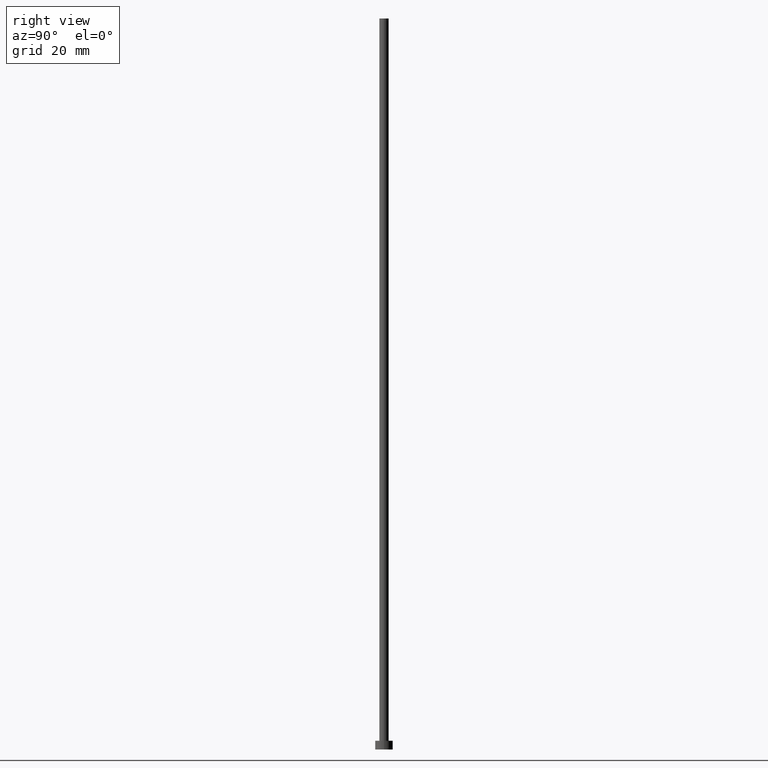
[diagram: clean part render]
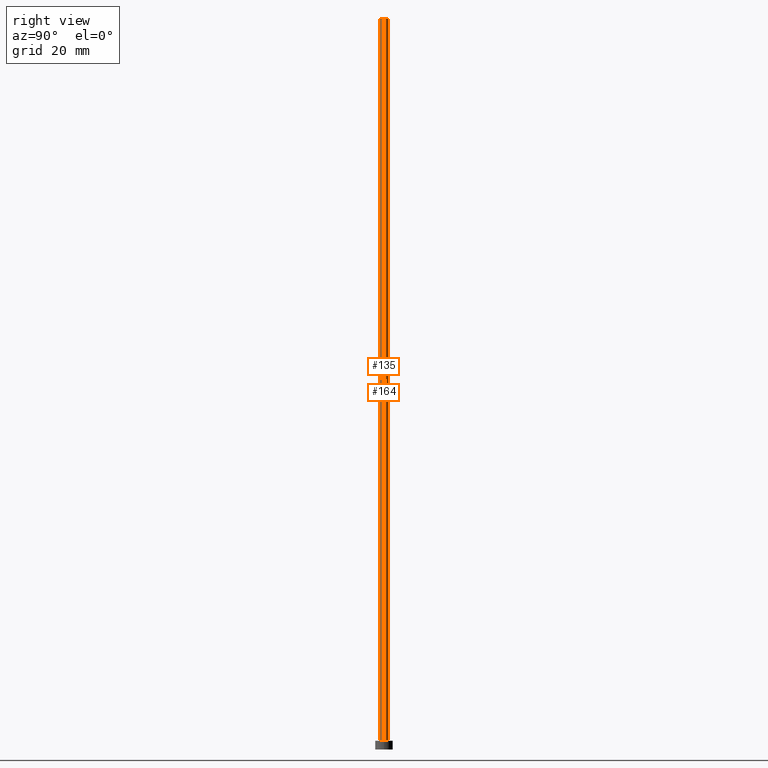
[diagram: same view with one multi-face feature highlighted, each face labeled with its STEP entity id]
A machine part, right view. The highlighted faces form ONE feature: a constant-radius fillet chain: 2 tangent blend faces with common blend radius 1.6 mm. The faces share edges in the B-rep.
Their STEP definitions:
[1] entity #164 (Cylinder):
#1 = DIRECTION ( 'NONE',  ( 1.000000000000000000, 0.000000000000000000, 0.000000000000000000 ) ) ;
#13 = EDGE_CURVE ( 'NONE', #122, #67, #26, .T. ) ;
#15 = CARTESIAN_POINT ( 'NONE',  ( -1.600000000000000089, 0.000000000000000000, 3.000000000000000000 ) ) ;
#24 = AXIS2_PLACEMENT_3D ( 'NONE', #127, #55, #1 ) ;
#26 = LINE ( 'NONE', #87, #102 ) ;
#50 = AXIS2_PLACEMENT_3D ( 'NONE', #71, #217, #53 ) ;
#53 = DIRECTION ( 'NONE',  ( 1.000000000000000000, 0.000000000000000000, 0.000000000000000000 ) ) ;
#55 = DIRECTION ( 'NONE',  ( 0.000000000000000000, 0.000000000000000000, 1.000000000000000000 ) ) ;
#63 = EDGE_LOOP ( 'NONE', ( #103, #190, #166, #229 ) ) ;
#67 = VERTEX_POINT ( 'NONE', #15 ) ;
#71 = CARTESIAN_POINT ( 'NONE',  ( 0.000000000000000000, 0.000000000000000000, 250.0000000000000000 ) ) ;
#74 = DIRECTION ( 'NONE',  ( -0.000000000000000000, -0.000000000000000000, -1.000000000000000000 ) ) ;
#87 = CARTESIAN_POINT ( 'NONE',  ( -1.600000000000000089, 0.000000000000000000, 250.0000000000000000 ) ) ;
#95 = EDGE_CURVE ( 'NONE', #193, #122, #115, .T. ) ;
#96 = CARTESIAN_POINT ( 'NONE',  ( 1.600000000000000089, 1.959434878635765230E-16, 250.0000000000000000 ) ) ;
#102 = VECTOR ( 'NONE', #148, 1000.000000000000000 ) ;
#103 = ORIENTED_EDGE ( 'NONE', *, *, #95, .F. ) ;
#113 = AXIS2_PLACEMENT_3D ( 'NONE', #219, #156, #252 ) ;
#115 = CIRCLE ( 'NONE', #50, 1.600000000000000089 ) ;
#122 = VERTEX_POINT ( 'NONE', #251 ) ;
#127 = CARTESIAN_POINT ( 'NONE',  ( 0.000000000000000000, 0.000000000000000000, 3.000000000000000000 ) ) ;
#134 = CYLINDRICAL_SURFACE ( 'NONE', #113, 1.600000000000000089 ) ;
#138 = EDGE_CURVE ( 'NONE', #248, #67, #240, .T. ) ;
#148 = DIRECTION ( 'NONE',  ( -0.000000000000000000, -0.000000000000000000, -1.000000000000000000 ) ) ;
#152 = LINE ( 'NONE', #96, #168 ) ;
#156 = DIRECTION ( 'NONE',  ( -0.000000000000000000, -0.000000000000000000, -1.000000000000000000 ) ) ;
#164 = ADVANCED_FACE ( 'NONE', ( #196 ), #134, .T. ) ;
#166 = ORIENTED_EDGE ( 'NONE', *, *, #138, .T. ) ;
#168 = VECTOR ( 'NONE', #74, 1000.000000000000000 ) ;
#178 = CARTESIAN_POINT ( 'NONE',  ( 1.600000000000000089, 1.959434878635765230E-16, 250.0000000000000000 ) ) ;
#190 = ORIENTED_EDGE ( 'NONE', *, *, #227, .T. ) ;
#193 = VERTEX_POINT ( 'NONE', #178 ) ;
#196 = FACE_OUTER_BOUND ( 'NONE', #63, .T. ) ;
#217 = DIRECTION ( 'NONE',  ( 0.000000000000000000, 0.000000000000000000, 1.000000000000000000 ) ) ;
#219 = CARTESIAN_POINT ( 'NONE',  ( 0.000000000000000000, 0.000000000000000000, 250.0000000000000000 ) ) ;
#227 = EDGE_CURVE ( 'NONE', #193, #248, #152, .T. ) ;
#229 = ORIENTED_EDGE ( 'NONE', *, *, #13, .F. ) ;
#238 = CARTESIAN_POINT ( 'NONE',  ( 1.600000000000000089, 1.959434878635765230E-16, 3.000000000000000000 ) ) ;
#240 = CIRCLE ( 'NONE', #24, 1.600000000000000089 ) ;
#248 = VERTEX_POINT ( 'NONE', #238 ) ;
#251 = CARTESIAN_POINT ( 'NONE',  ( -1.600000000000000089, 0.000000000000000000, 250.0000000000000000 ) ) ;
#252 = DIRECTION ( 'NONE',  ( -1.000000000000000000, 0.000000000000000000, 0.000000000000000000 ) ) ;
[2] entity #135 (Cylinder):
#13 = EDGE_CURVE ( 'NONE', #122, #67, #26, .T. ) ;
#15 = CARTESIAN_POINT ( 'NONE',  ( -1.600000000000000089, 0.000000000000000000, 3.000000000000000000 ) ) ;
#22 = EDGE_CURVE ( 'NONE', #67, #248, #59, .T. ) ;
#26 = LINE ( 'NONE', #87, #102 ) ;
#30 = DIRECTION ( 'NONE',  ( 1.000000000000000000, 0.000000000000000000, 0.000000000000000000 ) ) ;
#35 = FACE_OUTER_BOUND ( 'NONE', #146, .T. ) ;
#38 = DIRECTION ( 'NONE',  ( -0.000000000000000000, -0.000000000000000000, -1.000000000000000000 ) ) ;
#59 = CIRCLE ( 'NONE', #133, 1.600000000000000089 ) ;
#67 = VERTEX_POINT ( 'NONE', #15 ) ;
#69 = CYLINDRICAL_SURFACE ( 'NONE', #75, 1.600000000000000089 ) ;
#74 = DIRECTION ( 'NONE',  ( -0.000000000000000000, -0.000000000000000000, -1.000000000000000000 ) ) ;
#75 = AXIS2_PLACEMENT_3D ( 'NONE', #132, #38, #77 ) ;
#77 = DIRECTION ( 'NONE',  ( -1.000000000000000000, 0.000000000000000000, 0.000000000000000000 ) ) ;
#87 = CARTESIAN_POINT ( 'NONE',  ( -1.600000000000000089, 0.000000000000000000, 250.0000000000000000 ) ) ;
#96 = CARTESIAN_POINT ( 'NONE',  ( 1.600000000000000089, 1.959434878635765230E-16, 250.0000000000000000 ) ) ;
#100 = DIRECTION ( 'NONE',  ( 0.000000000000000000, 0.000000000000000000, 1.000000000000000000 ) ) ;
#102 = VECTOR ( 'NONE', #148, 1000.000000000000000 ) ;
#105 = ORIENTED_EDGE ( 'NONE', *, *, #22, .T. ) ;
#106 = CIRCLE ( 'NONE', #142, 1.600000000000000089 ) ;
#108 = CARTESIAN_POINT ( 'NONE',  ( 0.000000000000000000, 0.000000000000000000, 250.0000000000000000 ) ) ;
#122 = VERTEX_POINT ( 'NONE', #251 ) ;
#130 = EDGE_CURVE ( 'NONE', #122, #193, #106, .T. ) ;
#132 = CARTESIAN_POINT ( 'NONE',  ( 0.000000000000000000, 0.000000000000000000, 250.0000000000000000 ) ) ;
#133 = AXIS2_PLACEMENT_3D ( 'NONE', #213, #100, #30 ) ;
#135 = ADVANCED_FACE ( 'NONE', ( #35 ), #69, .T. ) ;
#142 = AXIS2_PLACEMENT_3D ( 'NONE', #108, #199, #180 ) ;
#144 = ORIENTED_EDGE ( 'NONE', *, *, #13, .T. ) ;
#146 = EDGE_LOOP ( 'NONE', ( #226, #214, #144, #105 ) ) ;
#148 = DIRECTION ( 'NONE',  ( -0.000000000000000000, -0.000000000000000000, -1.000000000000000000 ) ) ;
#152 = LINE ( 'NONE', #96, #168 ) ;
#168 = VECTOR ( 'NONE', #74, 1000.000000000000000 ) ;
#178 = CARTESIAN_POINT ( 'NONE',  ( 1.600000000000000089, 1.959434878635765230E-16, 250.0000000000000000 ) ) ;
#180 = DIRECTION ( 'NONE',  ( 1.000000000000000000, 0.000000000000000000, 0.000000000000000000 ) ) ;
#193 = VERTEX_POINT ( 'NONE', #178 ) ;
#199 = DIRECTION ( 'NONE',  ( 0.000000000000000000, 0.000000000000000000, 1.000000000000000000 ) ) ;
#213 = CARTESIAN_POINT ( 'NONE',  ( 0.000000000000000000, 0.000000000000000000, 3.000000000000000000 ) ) ;
#214 = ORIENTED_EDGE ( 'NONE', *, *, #130, .F. ) ;
#226 = ORIENTED_EDGE ( 'NONE', *, *, #227, .F. ) ;
#227 = EDGE_CURVE ( 'NONE', #193, #248, #152, .T. ) ;
#238 = CARTESIAN_POINT ( 'NONE',  ( 1.600000000000000089, 1.959434878635765230E-16, 3.000000000000000000 ) ) ;
#248 = VERTEX_POINT ( 'NONE', #238 ) ;
#251 = CARTESIAN_POINT ( 'NONE',  ( -1.600000000000000089, 0.000000000000000000, 250.0000000000000000 ) ) ;